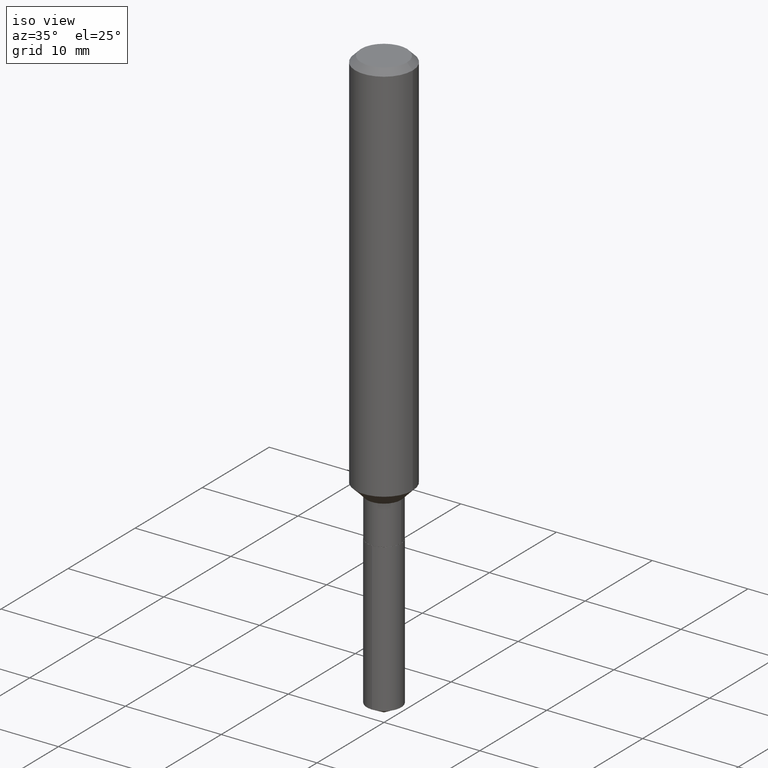
[diagram: clean part render]
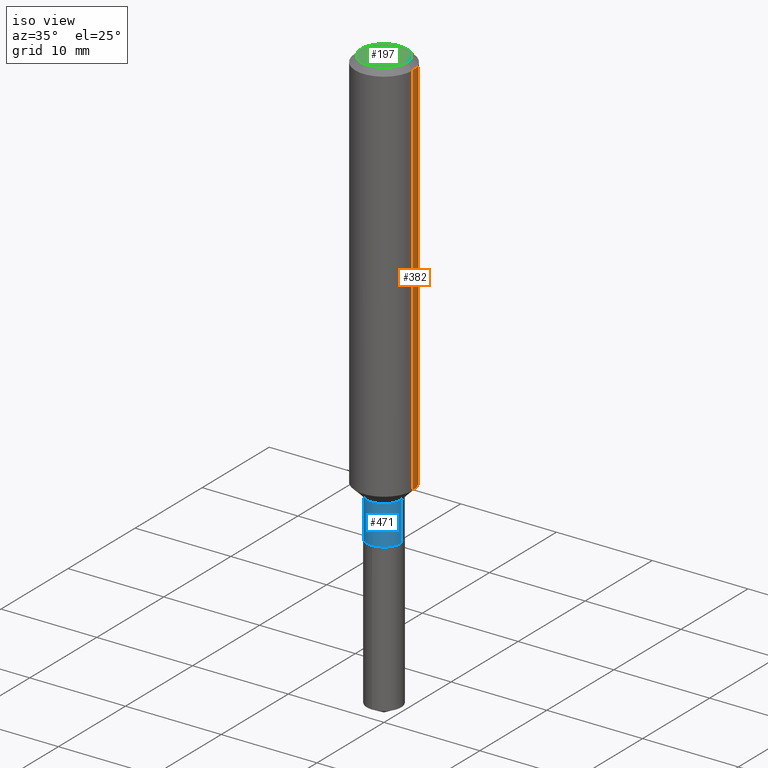
[diagram: same view with three faces highlighted in distinct colors, each labeled with its STEP entity id]
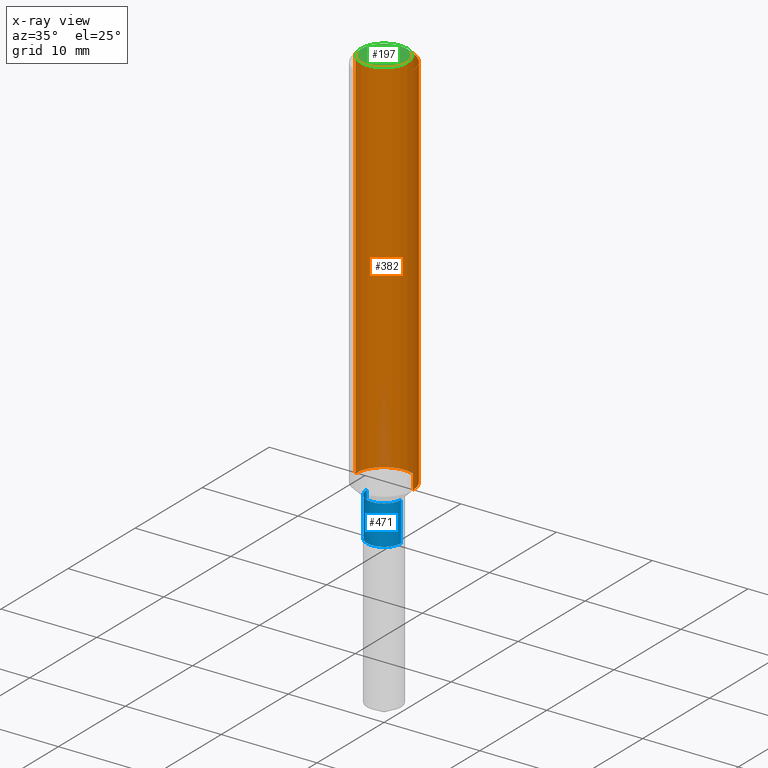
[diagram: x-ray of the same camera — body ghosted, the three highlighted faces saturated]
A machine part, iso view with three faces highlighted in distinct colors.
The next image is the same camera in x-ray (body ghosted, the three faces saturated) — at least one of them is partly hidden behind the body in this view.
Their STEP definitions:

[orange] entity #382 — the highlighted cylindrical surface (edge-blend (fillet) strip) has radius 2.9997 mm, axis along (-0, 0, 1).
#13 = CARTESIAN_POINT ( 'NONE',  ( 0.1180999999999999966, -9.071566814582237199E-16, -0.02362000000000013741 ) ) ;
#17 = CARTESIAN_POINT ( 'NONE',  ( 0.1181000000000001909, -6.357289221765599043E-15, -1.584600000000000453 ) ) ;
#33 = VECTOR ( 'NONE', #380, 39.37007874015748143 ) ;
#39 = CARTESIAN_POINT ( 'NONE',  ( 5.776197320209326656E-31, -8.246878922347558061E-17, -0.02362000000000013741 ) ) ;
#61 = CARTESIAN_POINT ( 'NONE',  ( 0.1181000000000001077, -8.246878922347488542E-16, 5.758764772215005345E-30 ) ) ;
#64 = DIRECTION ( 'NONE',  ( -2.445468806185136597E-29, 3.491481338843145583E-15, 1.000000000000000000 ) ) ;
#70 = AXIS2_PLACEMENT_3D ( 'NONE', #97, #64, #104 ) ;
#84 = CARTESIAN_POINT ( 'NONE',  ( -0.1180999999999999966, -1.968384088444482555E-15, -0.02362000000000013741 ) ) ;
#97 = CARTESIAN_POINT ( 'NONE',  ( 0.000000000000000000, 0.000000000000000000, 0.000000000000000000 ) ) ;
#99 = EDGE_CURVE ( 'NONE', #348, #333, #267, .T. ) ;
#104 = DIRECTION ( 'NONE',  ( 1.000000000000000000, -6.982962677686266711E-15, 4.876176775795935793E-29 ) ) ;
#106 = EDGE_CURVE ( 'NONE', #313, #333, #343, .T. ) ;
#156 = ORIENTED_EDGE ( 'NONE', *, *, #330, .T. ) ;
#159 = AXIS2_PLACEMENT_3D ( 'NONE', #346, #352, #162 ) ;
#162 = DIRECTION ( 'NONE',  ( 1.000000000000000000, -6.982962677686269077E-15, 0.000000000000000000 ) ) ;
#174 = FACE_OUTER_BOUND ( 'NONE', #232, .T. ) ;
#232 = EDGE_LOOP ( 'NONE', ( #156, #447, #359, #353 ) ) ;
#267 = CIRCLE ( 'NONE', #334, 0.1180999999999999966 ) ;
#308 = CARTESIAN_POINT ( 'NONE',  ( -0.1181000000000001909, -4.693450358598171005E-15, -1.584600000000000453 ) ) ;
#313 = VERTEX_POINT ( 'NONE', #308 ) ;
#317 = VERTEX_POINT ( 'NONE', #17 ) ;
#325 = LINE ( 'NONE', #61, #401 ) ;
#330 = EDGE_CURVE ( 'NONE', #317, #313, #448, .T. ) ;
#333 = VERTEX_POINT ( 'NONE', #84 ) ;
#334 = AXIS2_PLACEMENT_3D ( 'NONE', #39, #456, #418 ) ;
#343 = LINE ( 'NONE', #376, #33 ) ;
#346 = CARTESIAN_POINT ( 'NONE',  ( 3.875089870280967892E-29, -5.532601329530849202E-15, -1.584600000000000453 ) ) ;
#348 = VERTEX_POINT ( 'NONE', #13 ) ;
#352 = DIRECTION ( 'NONE',  ( -2.445468806185136597E-29, 3.491481338843145583E-15, 1.000000000000000000 ) ) ;
#353 = ORIENTED_EDGE ( 'NONE', *, *, #411, .F. ) ;
#359 = ORIENTED_EDGE ( 'NONE', *, *, #99, .F. ) ;
#376 = CARTESIAN_POINT ( 'NONE',  ( -0.1181000000000001077, 8.391509709326790846E-16, -5.809262341591049389E-30 ) ) ;
#380 = DIRECTION ( 'NONE',  ( -2.445468806185136877E-29, 3.491481338843145188E-15, 1.000000000000000000 ) ) ;
#382 = ADVANCED_FACE ( 'NONE', ( #174 ), #440, .T. ) ;
#401 = VECTOR ( 'NONE', #436, 39.37007874015748143 ) ;
#411 = EDGE_CURVE ( 'NONE', #317, #348, #325, .T. ) ;
#418 = DIRECTION ( 'NONE',  ( 1.000000000000000000, -6.982962677686266711E-15, 0.000000000000000000 ) ) ;
#436 = DIRECTION ( 'NONE',  ( -2.445468806185136877E-29, 3.491481338843145188E-15, 1.000000000000000000 ) ) ;
#440 = CYLINDRICAL_SURFACE ( 'NONE', #70, 0.1181000000000001077 ) ;
#447 = ORIENTED_EDGE ( 'NONE', *, *, #106, .T. ) ;
#448 = CIRCLE ( 'NONE', #159, 0.1181000000000001909 ) ;
#456 = DIRECTION ( 'NONE',  ( -2.445468806185136597E-29, 3.491481338843145583E-15, 1.000000000000000000 ) ) ;

[blue] entity #471 — the highlighted cylindrical surface (edge-blend (fillet) strip) has radius 1.7856 mm, axis along (-0, 0, 1).
#11 = CARTESIAN_POINT ( 'NONE',  ( 3.991983279216617405E-29, -5.699494137527552043E-15, -1.632400000000000295 ) ) ;
#14 = CIRCLE ( 'NONE', #389, 0.07029999999999998750 ) ;
#27 = CARTESIAN_POINT ( 'NONE',  ( 4.386192850773661378E-29, -6.262320929349066882E-15, -1.793600000000000305 ) ) ;
#35 = VECTOR ( 'NONE', #92, 39.37007874015748143 ) ;
#37 = VERTEX_POINT ( 'NONE', #140 ) ;
#44 = EDGE_CURVE ( 'NONE', #142, #37, #209, .T. ) ;
#52 = DIRECTION ( 'NONE',  ( 1.000000000000000000, -6.982962677686266711E-15, 0.000000000000000000 ) ) ;
#53 = AXIS2_PLACEMENT_3D ( 'NONE', #136, #274, #384 ) ;
#82 = AXIS2_PLACEMENT_3D ( 'NONE', #11, #155, #52 ) ;
#83 = CARTESIAN_POINT ( 'NONE',  ( -0.07029999999999998750, 4.995115432393503418E-16, -3.458011368449198169E-30 ) ) ;
#92 = DIRECTION ( 'NONE',  ( -2.445468806185136877E-29, 3.491481338843145188E-15, 1.000000000000000000 ) ) ;
#125 = ORIENTED_EDGE ( 'NONE', *, *, #268, .F. ) ;
#136 = CARTESIAN_POINT ( 'NONE',  ( 0.000000000000000000, 0.000000000000000000, 0.000000000000000000 ) ) ;
#140 = CARTESIAN_POINT ( 'NONE',  ( 0.07029999999999998750, -6.190396413768896991E-15, -1.632400000000000295 ) ) ;
#142 = VERTEX_POINT ( 'NONE', #146 ) ;
#146 = CARTESIAN_POINT ( 'NONE',  ( 0.07029999999999998750, -6.753223205590411040E-15, -1.793600000000000305 ) ) ;
#155 = DIRECTION ( 'NONE',  ( -2.445468806185136597E-29, 3.491481338843145583E-15, 1.000000000000000000 ) ) ;
#172 = CYLINDRICAL_SURFACE ( 'NONE', #53, 0.07029999999999998750 ) ;
#173 = ORIENTED_EDGE ( 'NONE', *, *, #44, .T. ) ;
#187 = DIRECTION ( 'NONE',  ( -2.445468806185136877E-29, 3.491481338843145188E-15, 1.000000000000000000 ) ) ;
#196 = LINE ( 'NONE', #83, #35 ) ;
#208 = DIRECTION ( 'NONE',  ( 1.000000000000000000, -6.982962677686266711E-15, 0.000000000000000000 ) ) ;
#209 = LINE ( 'NONE', #452, #305 ) ;
#216 = EDGE_LOOP ( 'NONE', ( #430, #326, #173, #125 ) ) ;
#268 = EDGE_CURVE ( 'NONE', #365, #37, #289, .T. ) ;
#274 = DIRECTION ( 'NONE',  ( -2.445468806185136597E-29, 3.491481338843145583E-15, 1.000000000000000000 ) ) ;
#281 = CARTESIAN_POINT ( 'NONE',  ( -0.07030000000000000138, -5.481395990198959614E-15, -1.793600000000000305 ) ) ;
#289 = CIRCLE ( 'NONE', #82, 0.07029999999999998750 ) ;
#294 = EDGE_CURVE ( 'NONE', #478, #365, #196, .T. ) ;
#305 = VECTOR ( 'NONE', #187, 39.37007874015748143 ) ;
#316 = CARTESIAN_POINT ( 'NONE',  ( -0.07029999999999998750, -5.481395990198959614E-15, -1.632400000000000295 ) ) ;
#326 = ORIENTED_EDGE ( 'NONE', *, *, #450, .T. ) ;
#364 = FACE_OUTER_BOUND ( 'NONE', #216, .T. ) ;
#365 = VERTEX_POINT ( 'NONE', #316 ) ;
#384 = DIRECTION ( 'NONE',  ( 1.000000000000000000, -6.982962677686266711E-15, 4.876176775795935232E-29 ) ) ;
#389 = AXIS2_PLACEMENT_3D ( 'NONE', #27, #481, #208 ) ;
#430 = ORIENTED_EDGE ( 'NONE', *, *, #294, .F. ) ;
#450 = EDGE_CURVE ( 'NONE', #478, #142, #14, .T. ) ;
#452 = CARTESIAN_POINT ( 'NONE',  ( 0.07029999999999998750, -4.909022762413444543E-16, 3.427952273384541736E-30 ) ) ;
#471 = ADVANCED_FACE ( 'NONE', ( #364 ), #172, .T. ) ;
#478 = VERTEX_POINT ( 'NONE', #281 ) ;
#481 = DIRECTION ( 'NONE',  ( -2.445468806185136597E-29, 3.491481338843145583E-15, 1.000000000000000000 ) ) ;

[green] entity #197 — the highlighted planar face has unit normal (0, -0, -1).
#8 = DIRECTION ( 'NONE',  ( -2.445468806185136597E-29, 3.491481338843145583E-15, 1.000000000000000000 ) ) ;
#54 = EDGE_CURVE ( 'NONE', #483, #487, #225, .T. ) ;
#65 = ORIENTED_EDGE ( 'NONE', *, *, #171, .T. ) ;
#75 = CARTESIAN_POINT ( 'NONE',  ( -1.414760311887566167E-46, 2.019902775041730779E-32, 5.785231479172097515E-18 ) ) ;
#86 = CARTESIAN_POINT ( 'NONE',  ( 0.09447999999999998066, -7.704367267948737704E-16, 5.785231479177098770E-18 ) ) ;
#105 = EDGE_LOOP ( 'NONE', ( #137, #65 ) ) ;
#111 = DIRECTION ( 'NONE',  ( -1.000000000000000000, 6.982962677686265922E-15, -4.876176775795935793E-29 ) ) ;
#117 = DIRECTION ( 'NONE',  ( -2.445468806185136597E-29, 3.491481338843145583E-15, 1.000000000000000000 ) ) ;
#120 = CARTESIAN_POINT ( 'NONE',  ( -7.073801559437830836E-47, 1.009951387520865390E-32, 2.892615739586048757E-18 ) ) ;
#137 = ORIENTED_EDGE ( 'NONE', *, *, #54, .T. ) ;
#148 = DIRECTION ( 'NONE',  ( 2.438088387897960049E-29, -3.491481338843145188E-15, -1.000000000000000000 ) ) ;
#154 = DIRECTION ( 'NONE',  ( 1.000000000000000000, -6.982962677686267499E-15, 4.876435884686232796E-29 ) ) ;
#158 = AXIS2_PLACEMENT_3D ( 'NONE', #120, #148, #111 ) ;
#171 = EDGE_CURVE ( 'NONE', #487, #483, #288, .T. ) ;
#191 = DIRECTION ( 'NONE',  ( 1.000000000000000000, -6.982962677686267499E-15, 4.876435884686232796E-29 ) ) ;
#197 = ADVANCED_FACE ( 'NONE', ( #412 ), #341, .F. ) ;
#225 = CIRCLE ( 'NONE', #301, 0.09447999999999998066 ) ;
#288 = CIRCLE ( 'NONE', #458, 0.09447999999999998066 ) ;
#301 = AXIS2_PLACEMENT_3D ( 'NONE', #75, #117, #191 ) ;
#341 = PLANE ( 'NONE',  #158 ) ;
#412 = FACE_OUTER_BOUND ( 'NONE', #105, .T. ) ;
#424 = CARTESIAN_POINT ( 'NONE',  ( -0.09447999999999998066, 7.009847083995354710E-16, 5.785231479167339697E-18 ) ) ;
#451 = CARTESIAN_POINT ( 'NONE',  ( -1.414760311887566167E-46, 2.019902775041730779E-32, 5.785231479172097515E-18 ) ) ;
#458 = AXIS2_PLACEMENT_3D ( 'NONE', #451, #8, #154 ) ;
#483 = VERTEX_POINT ( 'NONE', #424 ) ;
#487 = VERTEX_POINT ( 'NONE', #86 ) ;